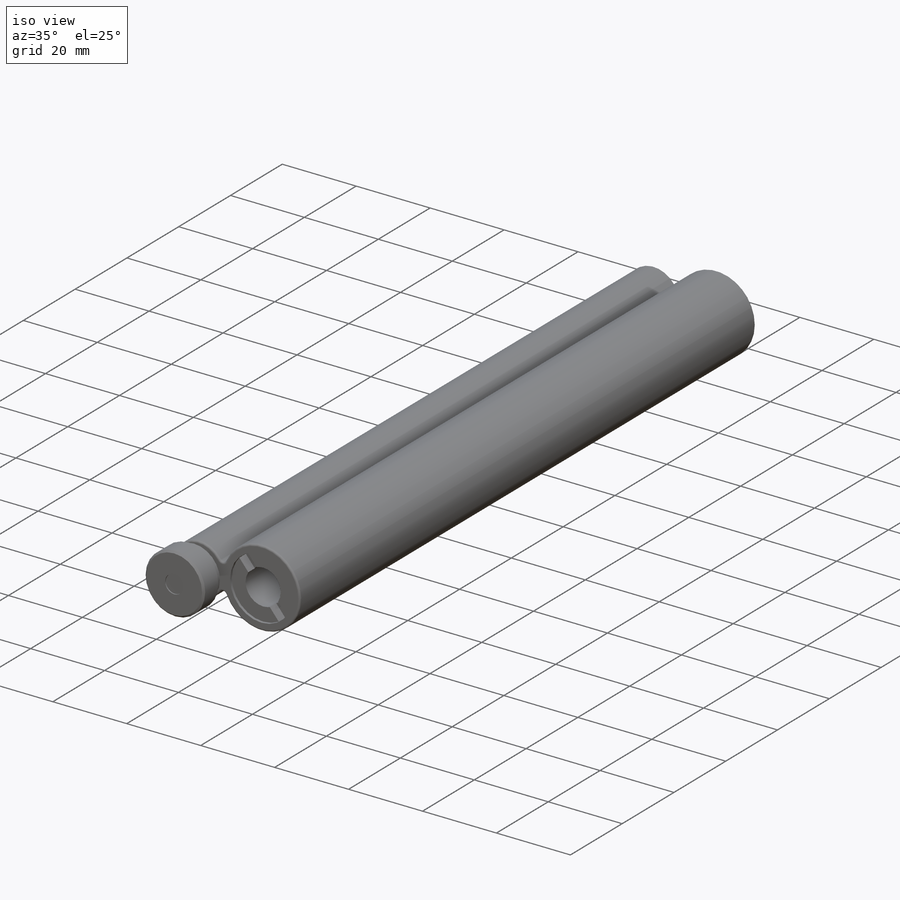
[diagram: iso view]
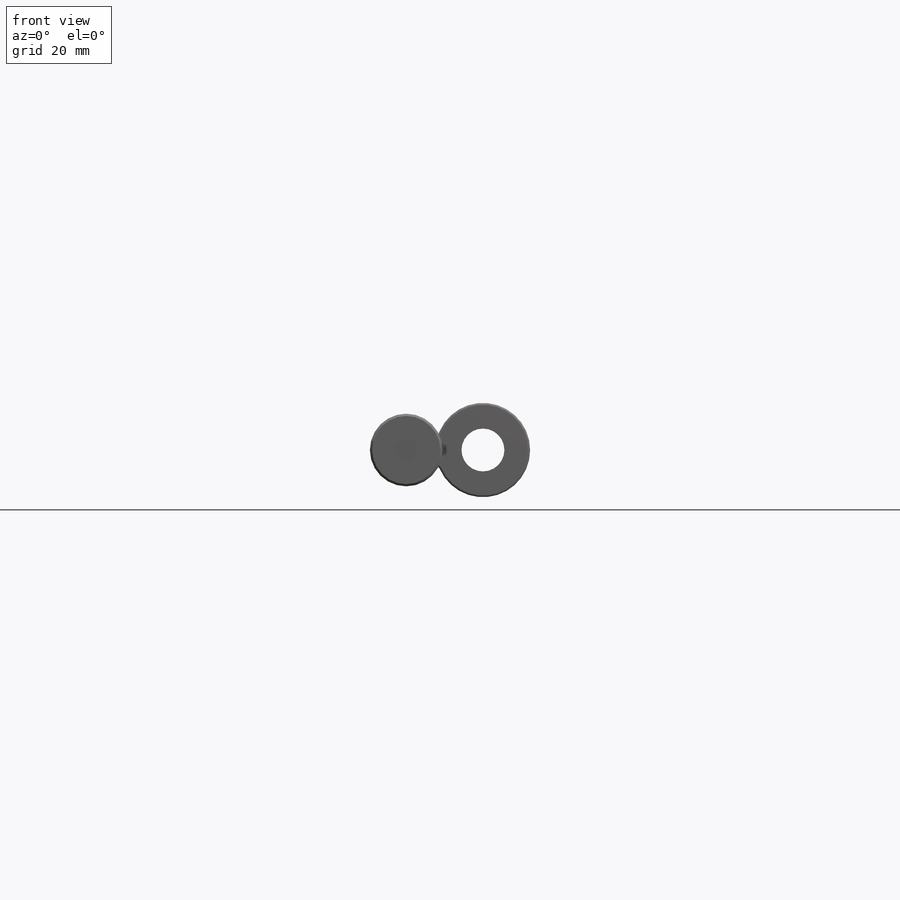
[diagram: front view]
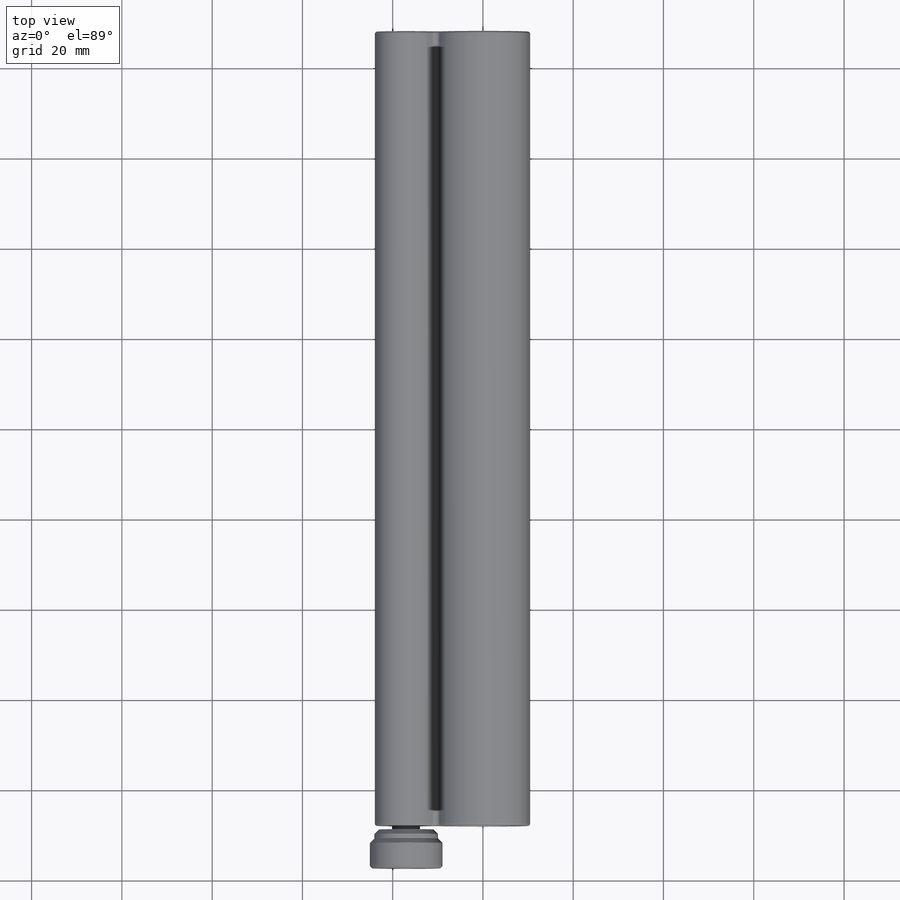
[diagram: top view]
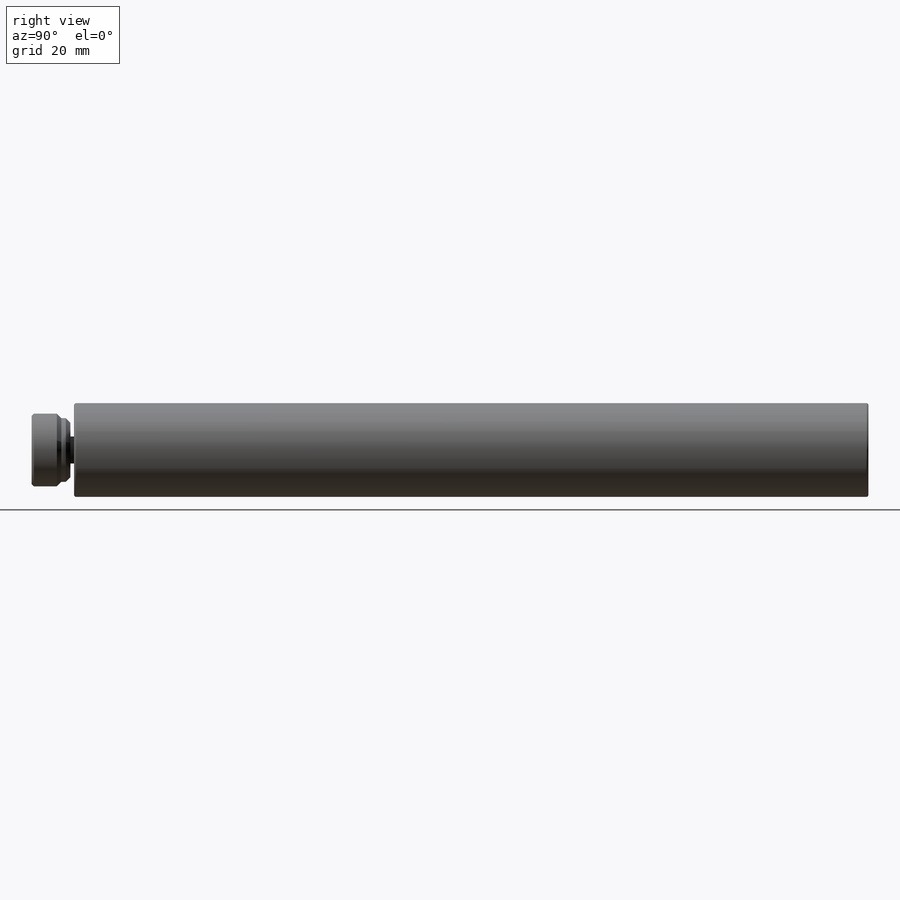
[diagram: right view]
SOLIDWORKS PART (.sldprt)
format: sldprt  version: not decoded by parser v0  size: 439,808 bytes
history: native  units: mm
features: sketch x7, cut_extrude x5, fillet x2, chamfer x2, material x1, extrude x1, revolve x1, mirror x1 (+11 scaffold rows collapsed)
feature tree (31):
  scaffold x11  (default folders/planes/origin — collapsed)
  material  "Material <not specified>"
  sketch  "Sketch2"  dims[D1=20.9mm D2=13.9mm D3=34.4mm]
  extrude  "Extrude1"  Depth=176mm
  fillet  "Fillet1"  Radius=1mm
  sketch  "Sketch3"  dims[D1=16.1mm D2=14.1mm D3=6.0mm D4=0.8mm D5=8.6mm D6=2.0mm D7=0.3mm D8=4.9mm]
  revolve  "Revolve1"  Angle=360deg
  sketch  "Sketch4"  dims[D1=16.9mm]
  cut_extrude  "Extrude2"  Depth=0.7mm
  sketch  "Sketch5"  dims[D2=9.5mm D1=2.9mm]
  cut_extrude  "Extrude3"  Depth=2.5mm
  sketch  "Sketch6"
  cut_extrude  "Extrude4"  [1 undecoded]
  mirror  "Mirror1"
  chamfer  "Chamfer1"  Distance=1mm Angle=45deg
  chamfer  "Chamfer2"  Distance=0.5mm Angle=45deg
  sketch  "Sketch7"  dims[D1=11.5mm]
  cut_extrude  "Extrude5"  Depth=0.1mm
  sketch  "Sketch8"  dims[D1=6.0mm]
  cut_extrude  "Extrude6"  Depth=9mm
  fillet  "Fillet2"  Radius=0.5mm
decode coverage: 16 of 19 modeling features carry decoded parameters
note: 1 parameter value undecoded
note: suppression state not decoded; provenance and decode notes live in map.json
